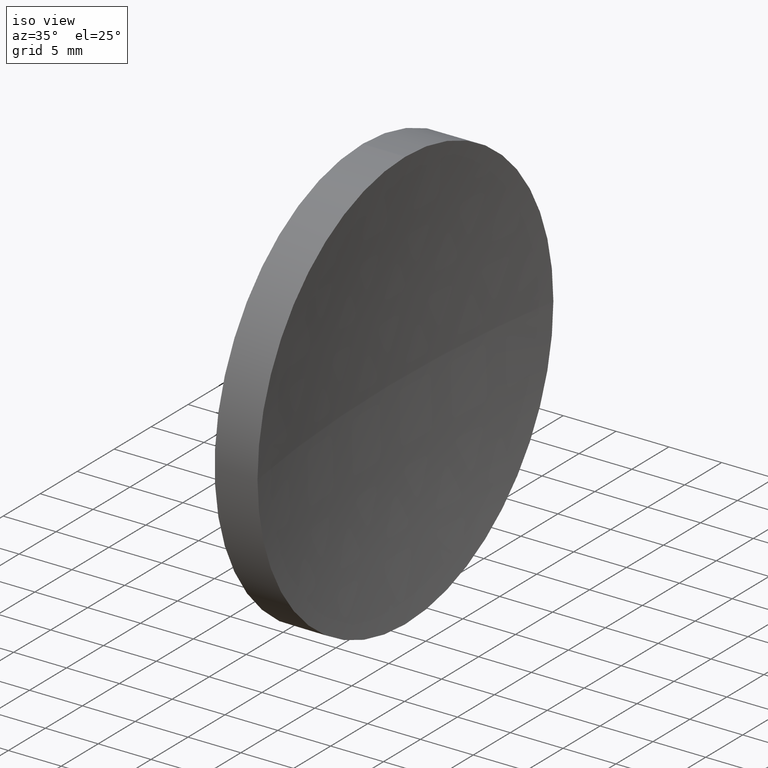
[diagram: clean part render]
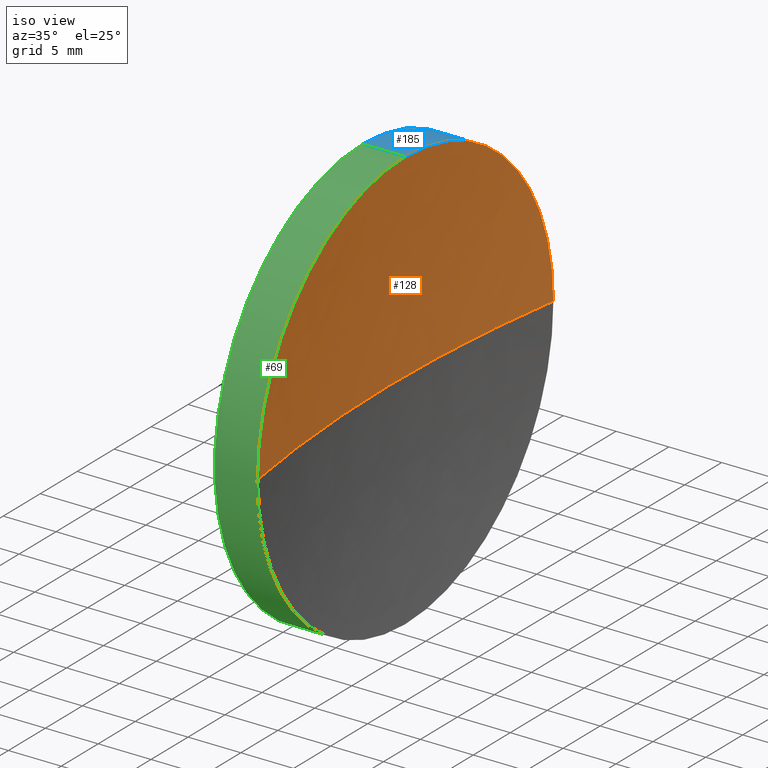
[diagram: same view with three faces highlighted in distinct colors, each labeled with its STEP entity id]
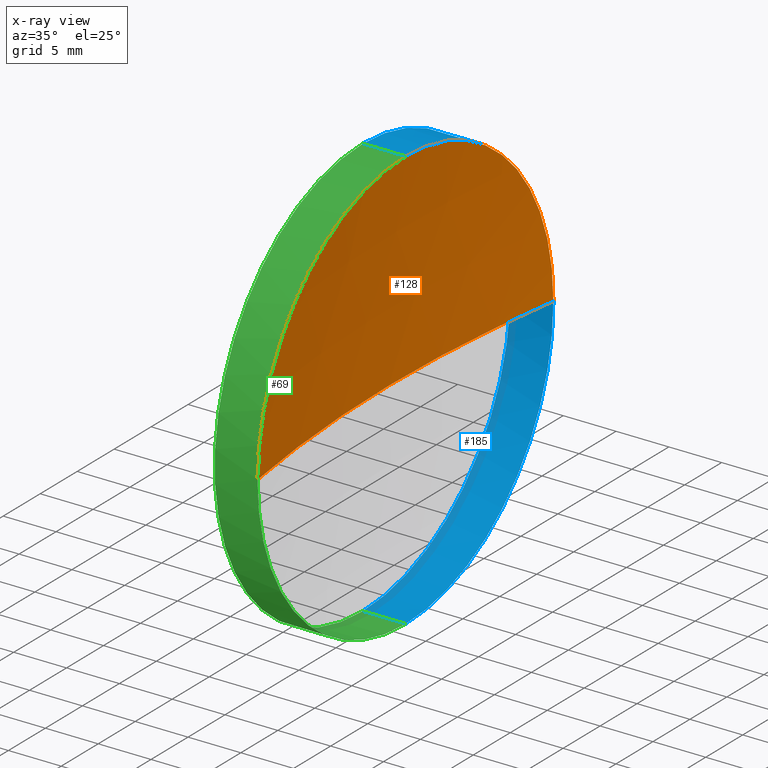
[diagram: x-ray of the same camera — body ghosted, the three highlighted faces saturated]
A machine part, iso view with three faces highlighted in distinct colors.
The next image is the same camera in x-ray (body ghosted, the three faces saturated) — at least one of them is partly hidden behind the body in this view.
Their STEP definitions:

[orange] entity #128 — the highlighted spherical surface has radius 129.24 mm.
#1 = EDGE_CURVE ( 'NONE', #37, #3, #143, .T. ) ;
#3 = VERTEX_POINT ( 'NONE', #162 ) ;
#4 = AXIS2_PLACEMENT_3D ( 'NONE', #6, #105, #23 ) ;
#6 = CARTESIAN_POINT ( 'NONE',  ( 117.9688176770456600, 65.15563045701519200, 0.0000000000000000000 ) ) ;
#8 = CARTESIAN_POINT ( 'NONE',  ( 245.6519316741596400, 65.15563045701519200, 0.0000000000000000000 ) ) ;
#15 = CARTESIAN_POINT ( 'NONE',  ( 117.9688176770456600, 65.15563045701519200, 0.0000000000000000000 ) ) ;
#17 = AXIS2_PLACEMENT_3D ( 'NONE', #8, #106, #24 ) ;
#20 = ORIENTED_EDGE ( 'NONE', *, *, #59, .F. ) ;
#23 = DIRECTION ( 'NONE',  ( 0.0000000000000000000, 0.0000000000000000000, 1.000000000000000000 ) ) ;
#24 = DIRECTION ( 'NONE',  ( 0.0000000000000000000, -1.000000000000000000, -1.224646799147353500E-016 ) ) ;
#29 = DIRECTION ( 'NONE',  ( 0.0000000000000000000, 0.0000000000000000000, 1.000000000000000000 ) ) ;
#37 = VERTEX_POINT ( 'NONE', #176 ) ;
#39 = ORIENTED_EDGE ( 'NONE', *, *, #146, .F. ) ;
#43 = DIRECTION ( 'NONE',  ( -1.000000000000000000, 0.0000000000000000000, 0.0000000000000000000 ) ) ;
#47 = ORIENTED_EDGE ( 'NONE', *, *, #1, .F. ) ;
#59 = EDGE_CURVE ( 'NONE', #157, #37, #142, .T. ) ;
#60 = CIRCLE ( 'NONE', #141, 20.00000000000000400 ) ;
#67 = AXIS2_PLACEMENT_3D ( 'NONE', #179, #165, #111 ) ;
#71 = CIRCLE ( 'NONE', #137, 129.2400000000000100 ) ;
#75 = EDGE_LOOP ( 'NONE', ( #47, #20, #39, #87 ) ) ;
#76 = SPHERICAL_SURFACE ( 'NONE', #67, 129.2400000000000100 ) ;
#80 = DIRECTION ( 'NONE',  ( 0.0000000000000000000, 0.0000000000000000000, -1.000000000000000000 ) ) ;
#87 = ORIENTED_EDGE ( 'NONE', *, *, #175, .T. ) ;
#99 = CARTESIAN_POINT ( 'NONE',  ( 245.6519316741596400, 65.15563045701519200, 0.0000000000000000000 ) ) ;
#105 = DIRECTION ( 'NONE',  ( -1.000000000000000000, -0.0000000000000000000, -0.0000000000000000000 ) ) ;
#106 = DIRECTION ( 'NONE',  ( 0.0000000000000000000, -1.224646799147353200E-016, 1.000000000000000000 ) ) ;
#111 = DIRECTION ( 'NONE',  ( 0.0000000000000000000, -1.000000000000000000, 0.0000000000000000000 ) ) ;
#117 = FACE_OUTER_BOUND ( 'NONE', #75, .T. ) ;
#126 = CARTESIAN_POINT ( 'NONE',  ( 117.9688176770456800, 45.15563045701513500, 0.0000000000000000000 ) ) ;
#128 = ADVANCED_FACE ( 'NONE', ( #117 ), #76, .F. ) ;
#137 = AXIS2_PLACEMENT_3D ( 'NONE', #99, #80, #43 ) ;
#141 = AXIS2_PLACEMENT_3D ( 'NONE', #15, #177, #29 ) ;
#142 = CIRCLE ( 'NONE', #4, 20.00000000000000400 ) ;
#143 = CIRCLE ( 'NONE', #17, 129.2400000000000100 ) ;
#146 = EDGE_CURVE ( 'NONE', #171, #157, #60, .T. ) ;
#157 = VERTEX_POINT ( 'NONE', #167 ) ;
#162 = CARTESIAN_POINT ( 'NONE',  ( 116.4119316741596200, 65.15563045701517800, 0.0000000000000000000 ) ) ;
#165 = DIRECTION ( 'NONE',  ( 0.0000000000000000000, 0.0000000000000000000, 1.000000000000000000 ) ) ;
#167 = CARTESIAN_POINT ( 'NONE',  ( 117.9688176770456600, 65.15563045701519200, 20.00000000000000400 ) ) ;
#171 = VERTEX_POINT ( 'NONE', #126 ) ;
#175 = EDGE_CURVE ( 'NONE', #171, #3, #71, .T. ) ;
#176 = CARTESIAN_POINT ( 'NONE',  ( 117.9688176770456800, 85.15563045701524900, 2.449293598294713200E-015 ) ) ;
#177 = DIRECTION ( 'NONE',  ( -1.000000000000000000, -0.0000000000000000000, -0.0000000000000000000 ) ) ;
#179 = CARTESIAN_POINT ( 'NONE',  ( 245.6519316741596400, 65.15563045701519200, 0.0000000000000000000 ) ) ;

[blue] entity #185 — the highlighted cylindrical surface (partial cylindrical patch) has radius 20 mm, axis along (-1, -0, -0).
#4 = AXIS2_PLACEMENT_3D ( 'NONE', #6, #105, #23 ) ;
#6 = CARTESIAN_POINT ( 'NONE',  ( 117.9688176770456600, 65.15563045701519200, 0.0000000000000000000 ) ) ;
#10 = EDGE_CURVE ( 'NONE', #157, #139, #89, .T. ) ;
#11 = CARTESIAN_POINT ( 'NONE',  ( 113.9119316741596200, 65.15563045701519200, 20.00000000000000400 ) ) ;
#16 = DIRECTION ( 'NONE',  ( 0.0000000000000000000, 0.0000000000000000000, 1.000000000000000000 ) ) ;
#21 = EDGE_CURVE ( 'NONE', #139, #51, #112, .T. ) ;
#23 = DIRECTION ( 'NONE',  ( 0.0000000000000000000, 0.0000000000000000000, 1.000000000000000000 ) ) ;
#25 = CARTESIAN_POINT ( 'NONE',  ( 113.9119316741596200, 65.15563045701519200, -20.00000000000000400 ) ) ;
#27 = AXIS2_PLACEMENT_3D ( 'NONE', #178, #33, #136 ) ;
#30 = VECTOR ( 'NONE', #153, 1000.000000000000000 ) ;
#33 = DIRECTION ( 'NONE',  ( -1.000000000000000000, -0.0000000000000000000, -0.0000000000000000000 ) ) ;
#37 = VERTEX_POINT ( 'NONE', #176 ) ;
#48 = ORIENTED_EDGE ( 'NONE', *, *, #10, .F. ) ;
#51 = VERTEX_POINT ( 'NONE', #25 ) ;
#59 = EDGE_CURVE ( 'NONE', #157, #37, #142, .T. ) ;
#61 = ORIENTED_EDGE ( 'NONE', *, *, #21, .F. ) ;
#63 = DIRECTION ( 'NONE',  ( -1.000000000000000000, -0.0000000000000000000, -0.0000000000000000000 ) ) ;
#77 = CARTESIAN_POINT ( 'NONE',  ( 105.6218371238301200, 65.15563045701519200, 20.00000000000000400 ) ) ;
#82 = ORIENTED_EDGE ( 'NONE', *, *, #166, .T. ) ;
#84 = DIRECTION ( 'NONE',  ( -1.000000000000000000, -0.0000000000000000000, -0.0000000000000000000 ) ) ;
#89 = LINE ( 'NONE', #77, #154 ) ;
#98 = VERTEX_POINT ( 'NONE', #140 ) ;
#103 = EDGE_LOOP ( 'NONE', ( #174, #82, #61, #48, #159 ) ) ;
#104 = CIRCLE ( 'NONE', #131, 20.00000000000000400 ) ;
#105 = DIRECTION ( 'NONE',  ( -1.000000000000000000, -0.0000000000000000000, -0.0000000000000000000 ) ) ;
#112 = CIRCLE ( 'NONE', #124, 20.00000000000000400 ) ;
#115 = EDGE_CURVE ( 'NONE', #37, #98, #104, .T. ) ;
#122 = DIRECTION ( 'NONE',  ( -1.000000000000000000, -0.0000000000000000000, -0.0000000000000000000 ) ) ;
#124 = AXIS2_PLACEMENT_3D ( 'NONE', #135, #63, #164 ) ;
#125 = CARTESIAN_POINT ( 'NONE',  ( 117.9688176770456600, 65.15563045701519200, 0.0000000000000000000 ) ) ;
#131 = AXIS2_PLACEMENT_3D ( 'NONE', #125, #84, #16 ) ;
#135 = CARTESIAN_POINT ( 'NONE',  ( 113.9119316741596200, 65.15563045701519200, 0.0000000000000000000 ) ) ;
#136 = DIRECTION ( 'NONE',  ( 0.0000000000000000000, 0.0000000000000000000, 1.000000000000000000 ) ) ;
#139 = VERTEX_POINT ( 'NONE', #11 ) ;
#140 = CARTESIAN_POINT ( 'NONE',  ( 117.9688176770456600, 65.15563045701519200, -20.00000000000000400 ) ) ;
#142 = CIRCLE ( 'NONE', #4, 20.00000000000000400 ) ;
#144 = FACE_OUTER_BOUND ( 'NONE', #103, .T. ) ;
#150 = CARTESIAN_POINT ( 'NONE',  ( 105.6218371238301200, 65.15563045701519200, -20.00000000000000400 ) ) ;
#153 = DIRECTION ( 'NONE',  ( -1.000000000000000000, -0.0000000000000000000, -0.0000000000000000000 ) ) ;
#154 = VECTOR ( 'NONE', #122, 1000.000000000000000 ) ;
#156 = CYLINDRICAL_SURFACE ( 'NONE', #27, 20.00000000000000400 ) ;
#157 = VERTEX_POINT ( 'NONE', #167 ) ;
#159 = ORIENTED_EDGE ( 'NONE', *, *, #59, .T. ) ;
#164 = DIRECTION ( 'NONE',  ( 0.0000000000000000000, 0.0000000000000000000, 1.000000000000000000 ) ) ;
#166 = EDGE_CURVE ( 'NONE', #98, #51, #173, .T. ) ;
#167 = CARTESIAN_POINT ( 'NONE',  ( 117.9688176770456600, 65.15563045701519200, 20.00000000000000400 ) ) ;
#173 = LINE ( 'NONE', #150, #30 ) ;
#174 = ORIENTED_EDGE ( 'NONE', *, *, #115, .T. ) ;
#176 = CARTESIAN_POINT ( 'NONE',  ( 117.9688176770456800, 85.15563045701524900, 2.449293598294713200E-015 ) ) ;
#178 = CARTESIAN_POINT ( 'NONE',  ( 105.6218371238301200, 65.15563045701519200, 0.0000000000000000000 ) ) ;
#185 = ADVANCED_FACE ( 'NONE', ( #144 ), #156, .T. ) ;

[green] entity #69 — the highlighted cylindrical surface (partial cylindrical patch) has radius 20 mm, axis along (-1, -0, -0).
#10 = EDGE_CURVE ( 'NONE', #157, #139, #89, .T. ) ;
#11 = CARTESIAN_POINT ( 'NONE',  ( 113.9119316741596200, 65.15563045701519200, 20.00000000000000400 ) ) ;
#15 = CARTESIAN_POINT ( 'NONE',  ( 117.9688176770456600, 65.15563045701519200, 0.0000000000000000000 ) ) ;
#19 = AXIS2_PLACEMENT_3D ( 'NONE', #108, #172, #120 ) ;
#25 = CARTESIAN_POINT ( 'NONE',  ( 113.9119316741596200, 65.15563045701519200, -20.00000000000000400 ) ) ;
#29 = DIRECTION ( 'NONE',  ( 0.0000000000000000000, 0.0000000000000000000, 1.000000000000000000 ) ) ;
#30 = VECTOR ( 'NONE', #153, 1000.000000000000000 ) ;
#31 = DIRECTION ( 'NONE',  ( 0.0000000000000000000, 0.0000000000000000000, 1.000000000000000000 ) ) ;
#32 = ORIENTED_EDGE ( 'NONE', *, *, #10, .T. ) ;
#38 = FACE_OUTER_BOUND ( 'NONE', #72, .T. ) ;
#51 = VERTEX_POINT ( 'NONE', #25 ) ;
#54 = ORIENTED_EDGE ( 'NONE', *, *, #183, .F. ) ;
#56 = CIRCLE ( 'NONE', #163, 20.00000000000000400 ) ;
#58 = ORIENTED_EDGE ( 'NONE', *, *, #146, .T. ) ;
#60 = CIRCLE ( 'NONE', #141, 20.00000000000000400 ) ;
#62 = AXIS2_PLACEMENT_3D ( 'NONE', #138, #113, #31 ) ;
#69 = ADVANCED_FACE ( 'NONE', ( #38 ), #134, .T. ) ;
#72 = EDGE_LOOP ( 'NONE', ( #152, #121, #58, #32, #54 ) ) ;
#77 = CARTESIAN_POINT ( 'NONE',  ( 105.6218371238301200, 65.15563045701519200, 20.00000000000000400 ) ) ;
#85 = DIRECTION ( 'NONE',  ( 0.0000000000000000000, 0.0000000000000000000, 1.000000000000000000 ) ) ;
#89 = LINE ( 'NONE', #77, #154 ) ;
#98 = VERTEX_POINT ( 'NONE', #140 ) ;
#108 = CARTESIAN_POINT ( 'NONE',  ( 105.6218371238301200, 65.15563045701519200, 0.0000000000000000000 ) ) ;
#109 = DIRECTION ( 'NONE',  ( -1.000000000000000000, -0.0000000000000000000, -0.0000000000000000000 ) ) ;
#113 = DIRECTION ( 'NONE',  ( -1.000000000000000000, -0.0000000000000000000, -0.0000000000000000000 ) ) ;
#120 = DIRECTION ( 'NONE',  ( 0.0000000000000000000, 0.0000000000000000000, 1.000000000000000000 ) ) ;
#121 = ORIENTED_EDGE ( 'NONE', *, *, #169, .T. ) ;
#122 = DIRECTION ( 'NONE',  ( -1.000000000000000000, -0.0000000000000000000, -0.0000000000000000000 ) ) ;
#126 = CARTESIAN_POINT ( 'NONE',  ( 117.9688176770456800, 45.15563045701513500, 0.0000000000000000000 ) ) ;
#134 = CYLINDRICAL_SURFACE ( 'NONE', #19, 20.00000000000000400 ) ;
#138 = CARTESIAN_POINT ( 'NONE',  ( 113.9119316741596200, 65.15563045701519200, 0.0000000000000000000 ) ) ;
#139 = VERTEX_POINT ( 'NONE', #11 ) ;
#140 = CARTESIAN_POINT ( 'NONE',  ( 117.9688176770456600, 65.15563045701519200, -20.00000000000000400 ) ) ;
#141 = AXIS2_PLACEMENT_3D ( 'NONE', #15, #177, #29 ) ;
#146 = EDGE_CURVE ( 'NONE', #171, #157, #60, .T. ) ;
#149 = CARTESIAN_POINT ( 'NONE',  ( 117.9688176770456600, 65.15563045701519200, 0.0000000000000000000 ) ) ;
#150 = CARTESIAN_POINT ( 'NONE',  ( 105.6218371238301200, 65.15563045701519200, -20.00000000000000400 ) ) ;
#152 = ORIENTED_EDGE ( 'NONE', *, *, #166, .F. ) ;
#153 = DIRECTION ( 'NONE',  ( -1.000000000000000000, -0.0000000000000000000, -0.0000000000000000000 ) ) ;
#154 = VECTOR ( 'NONE', #122, 1000.000000000000000 ) ;
#157 = VERTEX_POINT ( 'NONE', #167 ) ;
#163 = AXIS2_PLACEMENT_3D ( 'NONE', #149, #109, #85 ) ;
#166 = EDGE_CURVE ( 'NONE', #98, #51, #173, .T. ) ;
#167 = CARTESIAN_POINT ( 'NONE',  ( 117.9688176770456600, 65.15563045701519200, 20.00000000000000400 ) ) ;
#169 = EDGE_CURVE ( 'NONE', #98, #171, #56, .T. ) ;
#170 = CIRCLE ( 'NONE', #62, 20.00000000000000400 ) ;
#171 = VERTEX_POINT ( 'NONE', #126 ) ;
#172 = DIRECTION ( 'NONE',  ( -1.000000000000000000, -0.0000000000000000000, -0.0000000000000000000 ) ) ;
#173 = LINE ( 'NONE', #150, #30 ) ;
#177 = DIRECTION ( 'NONE',  ( -1.000000000000000000, -0.0000000000000000000, -0.0000000000000000000 ) ) ;
#183 = EDGE_CURVE ( 'NONE', #51, #139, #170, .T. ) ;